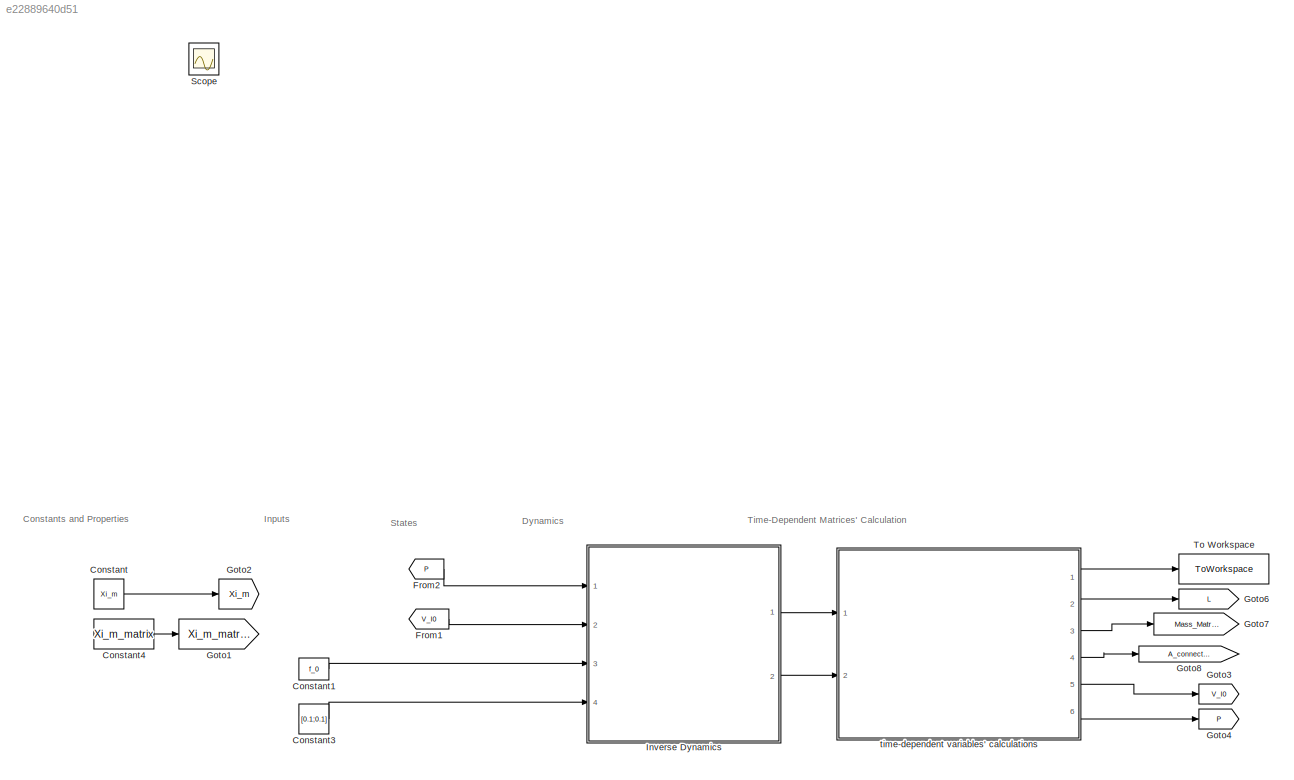
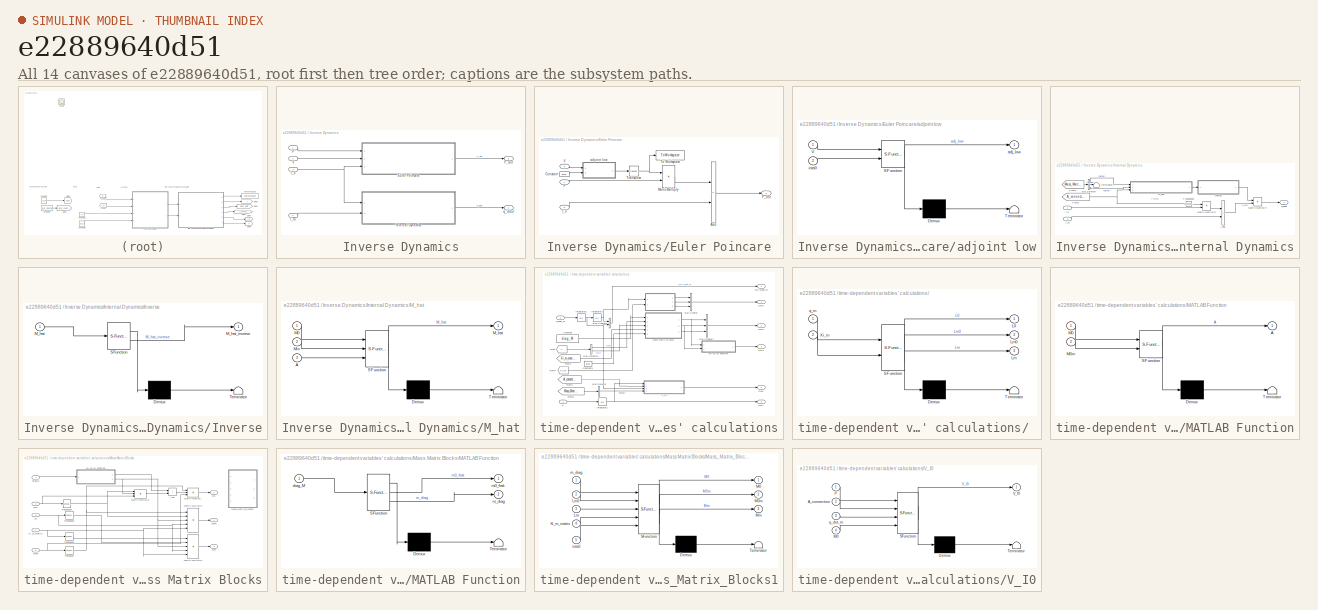
[diagram: thumbnail index - all 14 canvases of the model, root first then tree order]
MODEL slx_e22889640d51
KIND model
CONFIG AbsTol = auto
CONFIG EnableMultiTasking = off
CONFIG FixedStep = auto
CONFIG InitFcn = % ************** Initiate forces\n% f0=[0;0;0;0;0;0];\n% f0=[0;0;0;0;0;0;0];\nf_0=[0;0;0];\nf_m=[0;0];\nf_e=[0;0;0;0;0;0];\n% ************** Initiate states\nq_m=[0;0];\nq_dot_m=[0;0];\nP=[0;0;0];\nV_I0=[0;0;0];\n% ************** Load main\n%run(Main.m)
CONFIG MaxStep = auto
CONFIG MinStep = auto
CONFIG RelTol = 1e-3
CONFIG SampleTimeConstraint = Unconstrained
CONFIG SolverName = VariableStepAuto
CONFIG StartTime = 0.0
CONFIG StopTime = 10.0
BLOCK [Constant] Constant
  Value = Xi_m
  VectorParams1D = off
BLOCK [Constant] Constant1
  Value = f_0
  VectorParams1D = off
BLOCK [Constant] Constant3
  Value = [0.1;0.1]
  VectorParams1D = off
BLOCK [Constant] Constant4
  Value = Xi_m_matrix
  VectorParams1D = off
BLOCK [From] From1
  GotoTag = V_I0
  TagVisibility = global
BLOCK [From] From2
  GotoTag = P
  TagVisibility = global
BLOCK [Goto] Goto1
  GotoTag = Xi_m_matrix
  TagVisibility = global
BLOCK [Goto] Goto2
  GotoTag = Xi_m
  TagVisibility = global
BLOCK [Goto] Goto3
  GotoTag = V_I0
  TagVisibility = global
BLOCK [Goto] Goto4
  GotoTag = P
  TagVisibility = global
BLOCK [Goto] Goto6
  GotoTag = L
  TagVisibility = global
BLOCK [Goto] Goto7
  GotoTag = Mass_Matrix
  TagVisibility = global
BLOCK [Goto] Goto8
  GotoTag = A_connection
  TagVisibility = global
BLOCK [SubSystem] Inverse Dynamics
  NameLocation = right
  Ports = [4, 2]
  RequestExecContextInheritance = off
BLOCK [SubSystem] Inverse Dynamics/Euler Poincare
  Ports = [3, 1]
  RequestExecContextInheritance = off
BLOCK [Sum] Inverse Dynamics/Euler Poincare/Add
  IconShape = rectangular
  Inputs = +-
  Ports = [2, 1]
BLOCK [Constant] Inverse Dynamics/Euler Poincare/Constant
  Value = iota0
BLOCK [Product] Inverse Dynamics/Euler Poincare/Matrix Multiply
  Multiplication = Matrix(*)
  Ports = [2, 1]
BLOCK [Inport] Inverse Dynamics/Euler Poincare/P
BLOCK [Outport] Inverse Dynamics/Euler Poincare/P_dot
BLOCK [ToWorkspace] Inverse Dynamics/Euler Poincare/To Workspace
  FixptAsFi = on
  MaxDataPoints = inf
  Ports = [1]
  SampleTime = -1
  SaveFormat = Timeseries
  VariableName = simout
BLOCK [Math] Inverse Dynamics/Euler Poincare/Transpose
  Operator = transpose
  Ports = [1, 1]
BLOCK [Inport] Inverse Dynamics/Euler Poincare/V
  Port = 2
BLOCK [SubSystem] Inverse Dynamics/Euler Poincare/adjoint low
  ErrorFcn = Stateflow.Translate.translate
  PermitHierarchicalResolution = ExplicitOnly
  Ports = [2, 1]
  RequestExecContextInheritance = off
  SFBlockType = MATLAB Function
  TreatAsAtomicUnit = on
BLOCK [Demux] Inverse Dynamics/Euler Poincare/adjoint low/ Demux 
  Outputs = 1
  Ports = [1, 1]
BLOCK [S-Function] Inverse Dynamics/Euler Poincare/adjoint low/ SFunction 
  EnableBusSupport = on
  FunctionName = sf_sfun
  PortCounts = [2 2]
  Ports = [2, 2]
  SFcnIsStateOwnerBlock = off
  SFunctionDeploymentMode = off
  Tag = Stateflow S-Function 24
BLOCK [Terminator] Inverse Dynamics/Euler Poincare/adjoint low/ Terminator 
BLOCK [Inport] Inverse Dynamics/Euler Poincare/adjoint low/V
BLOCK [Outport] Inverse Dynamics/Euler Poincare/adjoint low/adj_low
BLOCK [Inport] Inverse Dynamics/Euler Poincare/adjoint low/iota0
  Port = 2
BLOCK [Inport] Inverse Dynamics/Euler Poincare/f_0
  Port = 3
BLOCK [SubSystem] Inverse Dynamics/Internal Dynamics
  Ports = [2, 1]
  RequestExecContextInheritance = off
BLOCK [Sum] Inverse Dynamics/Internal Dynamics/Add1
  IconShape = rectangular
  Inputs = -+
  Ports = [2, 1]
BLOCK [BusSelector] Inverse Dynamics/Internal Dynamics/Bus Selector
  OutputSignals = signal1,signal2,signal3
  Ports = [1, 3]
BLOCK [From] Inverse Dynamics/Internal Dynamics/From1
  GotoTag = A_connection
  TagVisibility = global
BLOCK [From] Inverse Dynamics/Internal Dynamics/From7
  GotoTag = Mass_Matrix
  TagVisibility = global
BLOCK [SubSystem] Inverse Dynamics/Internal Dynamics/Inverse
  ErrorFcn = Stateflow.Translate.translate
  PermitHierarchicalResolution = ExplicitOnly
  Ports = [1, 1]
  RequestExecContextInheritance = off
  SFBlockType = MATLAB Function
  TreatAsAtomicUnit = on
BLOCK [Demux] Inverse Dynamics/Internal Dynamics/Inverse/ Demux 
  Outputs = 1
  Ports = [1, 1]
BLOCK [S-Function] Inverse Dynamics/Internal Dynamics/Inverse/ SFunction 
  EnableBusSupport = on
  FunctionName = sf_sfun
  PortCounts = [1 2]
  Ports = [1, 2]
  SFcnIsStateOwnerBlock = off
  SFunctionDeploymentMode = off
  Tag = Stateflow S-Function 29
BLOCK [Terminator] Inverse Dynamics/Internal Dynamics/Inverse/ Terminator 
BLOCK [Inport] Inverse Dynamics/Internal Dynamics/Inverse/M_hat
BLOCK [Outport] Inverse Dynamics/Internal Dynamics/Inverse/M_hat_inverse
BLOCK [SubSystem] Inverse Dynamics/Internal Dynamics/M_hat
  ErrorFcn = Stateflow.Translate.translate
  PermitHierarchicalResolution = ExplicitOnly
  Ports = [3, 1]
  RequestExecContextInheritance = off
  SFBlockType = MATLAB Function
  TreatAsAtomicUnit = on
BLOCK [Demux] Inverse Dynamics/Internal Dynamics/M_hat/ Demux 
  Outputs = 1
  Ports = [1, 1]
BLOCK [S-Function] Inverse Dynamics/Internal Dynamics/M_hat/ SFunction 
  EnableBusSupport = on
  FunctionName = sf_sfun
  PortCounts = [3 2]
  Ports = [3, 2]
  SFcnIsStateOwnerBlock = off
  SFunctionDeploymentMode = off
  Tag = Stateflow S-Function 32
BLOCK [Terminator] Inverse Dynamics/Internal Dynamics/M_hat/ Terminator 
BLOCK [Inport] Inverse Dynamics/Internal Dynamics/M_hat/A
  Port = 3
BLOCK [Inport] Inverse Dynamics/Internal Dynamics/M_hat/M0
BLOCK [Outport] Inverse Dynamics/Internal Dynamics/M_hat/M_hat
BLOCK [Inport] Inverse Dynamics/Internal Dynamics/M_hat/Mm
  Port = 2
BLOCK [Product] Inverse Dynamics/Internal Dynamics/Matrix Multiply2
  Multiplication = Matrix(*)
  Ports = [2, 1]
BLOCK [Product] Inverse Dynamics/Internal Dynamics/Matrix Multiply4
  Multiplication = Matrix(*)
  Ports = [2, 1]
BLOCK [Terminator] Inverse Dynamics/Internal Dynamics/Terminator1
BLOCK [Math] Inverse Dynamics/Internal Dynamics/Transpose2
  Operator = transpose
  Ports = [1, 1]
BLOCK [Inport] Inverse Dynamics/Internal Dynamics/f_0
BLOCK [Inport] Inverse Dynamics/Internal Dynamics/f_m
  Port = 2
BLOCK [Outport] Inverse Dynamics/Internal Dynamics/q_ddot
BLOCK [Inport] Inverse Dynamics/P
BLOCK [Outport] Inverse Dynamics/P_dot
BLOCK [Inport] Inverse Dynamics/V
  Port = 2
BLOCK [Inport] Inverse Dynamics/f_0
  Port = 3
BLOCK [Inport] Inverse Dynamics/f_m
  Port = 4
BLOCK [Outport] Inverse Dynamics/q_ddot
  Port = 2
BLOCK [Scope] Scope
  Floating = off
  IOType = viewer
  NumInputPorts = 1
  Ports = []
  ScopeSpecificationString = Simulink.scopes.TimeScopeBlockCfg('CurrentConfiguration', extmgr.ConfigurationSet(extmgr.Configuration('Core','General UI',true),extmgr.Configuration('Core','Source UI',true),extmgr.Configuration('Sources','WiredSimulink',true),extmgr.Configuration('Visuals','Time Domain',true,'SerializedDisplays',{struct('MinYLimReal','-10','MaxYLimReal','10','YLabelReal','','MinYLimMag','0','MaxYLimMag','10','Le...<+777ch>
BLOCK [ToWorkspace] To Workspace
  FixptAsFi = on
  MaxDataPoints = inf
  Ports = [1]
  SampleTime = -1
  SaveFormat = Timeseries
  VariableName = simout1
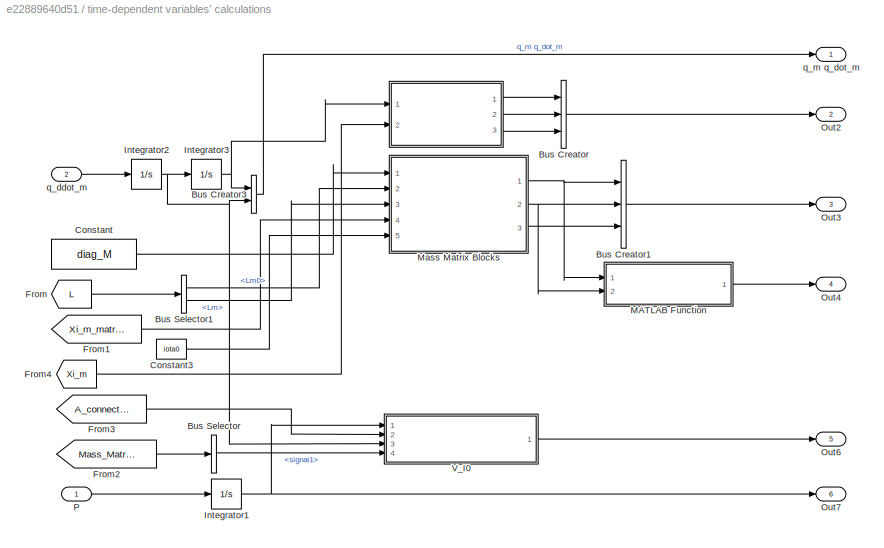
BLOCK [SubSystem] time-dependent variables' calculations
  Ports = [2, 6]
  RequestExecContextInheritance = off
BLOCK [SubSystem] time-dependent variables' calculations/ 
  ErrorFcn = Stateflow.Translate.translate
  PermitHierarchicalResolution = ExplicitOnly
  Ports = [2, 3]
  RequestExecContextInheritance = off
  SFBlockType = MATLAB Function
  TreatAsAtomicUnit = on
BLOCK [Demux] time-dependent variables' calculations/ / Demux 
  Outputs = 1
  Ports = [1, 1]
BLOCK [S-Function] time-dependent variables' calculations/ / SFunction 
  EnableBusSupport = on
  FunctionName = sf_sfun
  PortCounts = [2 4]
  Ports = [2, 4]
  SFcnIsStateOwnerBlock = off
  SFunctionDeploymentMode = off
  Tag = Stateflow S-Function 34
BLOCK [Terminator] time-dependent variables' calculations/ / Terminator 
BLOCK [Outport] time-dependent variables' calculations/ /L0
BLOCK [Outport] time-dependent variables' calculations/ /Lm
  Port = 3
BLOCK [Outport] time-dependent variables' calculations/ /Lm0
  Port = 2
BLOCK [Inport] time-dependent variables' calculations/ /Xi_m
  Port = 2
BLOCK [Inport] time-dependent variables' calculations/ /q_m
BLOCK [BusCreator] time-dependent variables' calculations/Bus Creator
  DisplayOption = bar
  InheritFromInputs = on
  Inputs = 3
  Ports = [3, 1]
BLOCK [BusCreator] time-dependent variables' calculations/Bus Creator1
  DisplayOption = bar
  InheritFromInputs = on
  Inputs = 3
  Ports = [3, 1]
BLOCK [BusCreator] time-dependent variables' calculations/Bus Creator3
  DisplayOption = bar
  InheritFromInputs = on
  Inputs = 2
  Ports = [2, 1]
BLOCK [BusSelector] time-dependent variables' calculations/Bus Selector
  OutputSignals = signal1
  Ports = [1, 1]
BLOCK [BusSelector] time-dependent variables' calculations/Bus Selector1
  OutputSignals = Lm0,Lm
  Ports = [1, 2]
BLOCK [Constant] time-dependent variables' calculations/Constant
  Value = diag_M
  VectorParams1D = off
BLOCK [Constant] time-dependent variables' calculations/Constant3
  Value = iota0
  VectorParams1D = off
BLOCK [From] time-dependent variables' calculations/From
  GotoTag = L
  TagVisibility = global
BLOCK [From] time-dependent variables' calculations/From1
  GotoTag = Xi_m_matrix
  TagVisibility = global
BLOCK [From] time-dependent variables' calculations/From2
  GotoTag = Mass_Matrix
  TagVisibility = global
BLOCK [From] time-dependent variables' calculations/From3
  GotoTag = A_connection
  TagVisibility = global
BLOCK [From] time-dependent variables' calculations/From4
  GotoTag = Xi_m
  TagVisibility = global
BLOCK [Integrator] time-dependent variables' calculations/Integrator1
  Ports = [1, 1]
BLOCK [Integrator] time-dependent variables' calculations/Integrator2
  Ports = [1, 1]
BLOCK [Integrator] time-dependent variables' calculations/Integrator3
  Ports = [1, 1]
BLOCK [SubSystem] time-dependent variables' calculations/MATLAB Function
  ErrorFcn = Stateflow.Translate.translate
  PermitHierarchicalResolution = ExplicitOnly
  Ports = [2, 1]
  RequestExecContextInheritance = off
  SFBlockType = MATLAB Function
  TreatAsAtomicUnit = on
BLOCK [Demux] time-dependent variables' calculations/MATLAB Function/ Demux 
  Outputs = 1
  Ports = [1, 1]
BLOCK [S-Function] time-dependent variables' calculations/MATLAB Function/ SFunction 
  EnableBusSupport = on
  FunctionName = sf_sfun
  PortCounts = [2 2]
  Ports = [2, 2]
  SFcnIsStateOwnerBlock = off
  SFunctionDeploymentMode = off
  Tag = Stateflow S-Function 35
BLOCK [Terminator] time-dependent variables' calculations/MATLAB Function/ Terminator 
BLOCK [Outport] time-dependent variables' calculations/MATLAB Function/A
BLOCK [Inport] time-dependent variables' calculations/MATLAB Function/M0
BLOCK [Inport] time-dependent variables' calculations/MATLAB Function/M0m
  Port = 2
BLOCK [SubSystem] time-dependent variables' calculations/Mass Matrix Blocks
  Ports = [5, 3]
  RequestExecContextInheritance = off
BLOCK [Sum] time-dependent variables' calculations/Mass Matrix Blocks/Add
  IconShape = rectangular
  Ports = [2, 1]
BLOCK [Inport] time-dependent variables' calculations/Mass Matrix Blocks/Lm
  Port = 3
BLOCK [Inport] time-dependent variables' calculations/Mass Matrix Blocks/Lm0
  Port = 2
BLOCK [Outport] time-dependent variables' calculations/Mass Matrix Blocks/M0
BLOCK [Outport] time-dependent variables' calculations/Mass Matrix Blocks/M0m
  Port = 2
BLOCK [SubSystem] time-dependent variables' calculations/Mass Matrix Blocks/MATLAB Function
  ErrorFcn = Stateflow.Translate.translate
  PermitHierarchicalResolution = ExplicitOnly
  Ports = [1, 2]
  RequestExecContextInheritance = off
  SFBlockType = MATLAB Function
  TreatAsAtomicUnit = on
BLOCK [Demux] time-dependent variables' calculations/Mass Matrix Blocks/MATLAB Function/ Demux 
  Outputs = 1
  Ports = [1, 1]
BLOCK [S-Function] time-dependent variables' calculations/Mass Matrix Blocks/MATLAB Function/ SFunction 
  EnableBusSupport = on
  FunctionName = sf_sfun
  PortCounts = [1 3]
  Ports = [1, 3]
  SFcnIsStateOwnerBlock = off
  SFunctionDeploymentMode = off
  Tag = Stateflow S-Function 40
BLOCK [Terminator] time-dependent variables' calculations/Mass Matrix Blocks/MATLAB Function/ Terminator 
BLOCK [Inport] time-dependent variables' calculations/Mass Matrix Blocks/MATLAB Function/diag_M
BLOCK [Outport] time-dependent variables' calculations/Mass Matrix Blocks/MATLAB Function/m0_frak
BLOCK [Outport] time-dependent variables' calculations/Mass Matrix Blocks/MATLAB Function/m_diag
  Port = 2
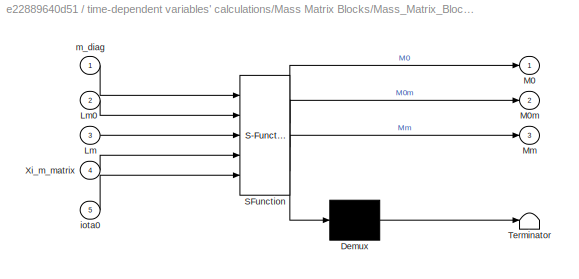
BLOCK [SubSystem] time-dependent variables' calculations/Mass Matrix Blocks/Mass_Matrix_Blocks1
  Commented = on
  ErrorFcn = Stateflow.Translate.translate
  PermitHierarchicalResolution = ExplicitOnly
  Ports = [5, 3]
  RequestExecContextInheritance = off
  SFBlockType = MATLAB Function
  TreatAsAtomicUnit = on
BLOCK [Demux] time-dependent variables' calculations/Mass Matrix Blocks/Mass_Matrix_Blocks1/ Demux 
  Outputs = 1
  Ports = [1, 1]
BLOCK [S-Function] time-dependent variables' calculations/Mass Matrix Blocks/Mass_Matrix_Blocks1/ SFunction 
  EnableBusSupport = on
  FunctionName = sf_sfun
  PortCounts = [5 4]
  Ports = [5, 4]
  SFcnIsStateOwnerBlock = off
  SFunctionDeploymentMode = off
  Tag = Stateflow S-Function 41
BLOCK [Terminator] time-dependent variables' calculations/Mass Matrix Blocks/Mass_Matrix_Blocks1/ Terminator 
BLOCK [Inport] time-dependent variables' calculations/Mass Matrix Blocks/Mass_Matrix_Blocks1/Lm
  Port = 3
BLOCK [Inport] time-dependent variables' calculations/Mass Matrix Blocks/Mass_Matrix_Blocks1/Lm0
  Port = 2
BLOCK [Outport] time-dependent variables' calculations/Mass Matrix Blocks/Mass_Matrix_Blocks1/M0
BLOCK [Outport] time-dependent variables' calculations/Mass Matrix Blocks/Mass_Matrix_Blocks1/M0m
  Port = 2
BLOCK [Outport] time-dependent variables' calculations/Mass Matrix Blocks/Mass_Matrix_Blocks1/Mm
  Port = 3
BLOCK [Inport] time-dependent variables' calculations/Mass Matrix Blocks/Mass_Matrix_Blocks1/Xi_m_matrix
  Port = 4
BLOCK [Inport] time-dependent variables' calculations/Mass Matrix Blocks/Mass_Matrix_Blocks1/iota0
  Port = 5
BLOCK [Inport] time-dependent variables' calculations/Mass Matrix Blocks/Mass_Matrix_Blocks1/m_diag
BLOCK [Product] time-dependent variables' calculations/Mass Matrix Blocks/Matrix Multiply
  Inputs = 3
  Multiplication = Matrix(*)
  Ports = [3, 1]
BLOCK [Product] time-dependent variables' calculations/Mass Matrix Blocks/Matrix Multiply1
  Inputs = 5
  Multiplication = Matrix(*)
  Ports = [5, 1]
BLOCK [Product] time-dependent variables' calculations/Mass Matrix Blocks/Matrix Multiply2
  Inputs = 5
  Multiplication = Matrix(*)
  Ports = [5, 1]
BLOCK [Product] time-dependent variables' calculations/Mass Matrix Blocks/Matrix Multiply3
  Inputs = 3
  Multiplication = Matrix(*)
  Ports = [3, 1]
BLOCK [Outport] time-dependent variables' calculations/Mass Matrix Blocks/Mm
  Port = 3
BLOCK [Math] time-dependent variables' calculations/Mass Matrix Blocks/Transpose
  Operator = transpose
  Ports = [1, 1]
BLOCK [Math] time-dependent variables' calculations/Mass Matrix Blocks/Transpose1
  Operator = transpose
  Ports = [1, 1]
BLOCK [Math] time-dependent variables' calculations/Mass Matrix Blocks/Transpose2
  Operator = transpose
  Ports = [1, 1]
BLOCK [Math] time-dependent variables' calculations/Mass Matrix Blocks/Transpose3
  Operator = transpose
  Ports = [1, 1]
BLOCK [Inport] time-dependent variables' calculations/Mass Matrix Blocks/Xi_m_matrix
  Port = 4
BLOCK [Inport] time-dependent variables' calculations/Mass Matrix Blocks/diag_M
BLOCK [Inport] time-dependent variables' calculations/Mass Matrix Blocks/iota0
  Port = 5
BLOCK [Outport] time-dependent variables' calculations/Out2
  Port = 2
BLOCK [Outport] time-dependent variables' calculations/Out3
  Port = 3
BLOCK [Outport] time-dependent variables' calculations/Out4
  Port = 4
BLOCK [Outport] time-dependent variables' calculations/Out6
  Port = 5
BLOCK [Outport] time-dependent variables' calculations/Out7
  Port = 6
BLOCK [Inport] time-dependent variables' calculations/P
BLOCK [SubSystem] time-dependent variables' calculations/V_I0
  ErrorFcn = Stateflow.Translate.translate
  PermitHierarchicalResolution = ExplicitOnly
  Ports = [4, 1]
  RequestExecContextInheritance = off
  SFBlockType = MATLAB Function
  TreatAsAtomicUnit = on
BLOCK [Demux] time-dependent variables' calculations/V_I0/ Demux 
  Outputs = 1
  Ports = [1, 1]
BLOCK [S-Function] time-dependent variables' calculations/V_I0/ SFunction 
  EnableBusSupport = on
  FunctionName = sf_sfun
  PortCounts = [4 2]
  Ports = [4, 2]
  SFcnIsStateOwnerBlock = off
  SFunctionDeploymentMode = off
  Tag = Stateflow S-Function 53
BLOCK [Terminator] time-dependent variables' calculations/V_I0/ Terminator 
BLOCK [Inport] time-dependent variables' calculations/V_I0/A_connection
  Port = 2
BLOCK [Inport] time-dependent variables' calculations/V_I0/M0
  Port = 4
BLOCK [Inport] time-dependent variables' calculations/V_I0/P
BLOCK [Outport] time-dependent variables' calculations/V_I0/V_I0
BLOCK [Inport] time-dependent variables' calculations/V_I0/q_dot_m
  Port = 3
BLOCK [Inport] time-dependent variables' calculations/q_ddot_m
  Port = 2
BLOCK [Outport] time-dependent variables' calculations/q_m q_dot_m
ANNOTATION (root): Constants and Properties
ANNOTATION (root): Dynamics
ANNOTATION (root): Inputs
ANNOTATION (root): States
ANNOTATION (root): Time-Dependent Matrices' Calculation
ANNOTATION Inverse Dynamics/Internal Dynamics: Forces
LINE Constant1:1 -> Inverse Dynamics:3
LINE Constant3:1 -> Inverse Dynamics:4
LINE Constant4:1 -> Goto1:1
LINE Constant:1 -> Goto2:1
LINE From1:1 -> Inverse Dynamics:2
LINE From2:1 -> Inverse Dynamics:1
LINE Inverse Dynamics/Euler Poincare/Add:1 -> Inverse Dynamics/Euler Poincare/P_dot:1
LINE Inverse Dynamics/Euler Poincare/Constant:1 -> Inverse Dynamics/Euler Poincare/adjoint low:2
LINE Inverse Dynamics/Euler Poincare/Matrix Multiply:1 -> Inverse Dynamics/Euler Poincare/Add:1
LINE Inverse Dynamics/Euler Poincare/P:1 -> Inverse Dynamics/Euler Poincare/Matrix Multiply:2
NET Inverse Dynamics/Euler Poincare/Transpose:1 -> Inverse Dynamics/Euler Poincare/Matrix Multiply:1, Inverse Dynamics/Euler Poincare/To Workspace:1
LINE Inverse Dynamics/Euler Poincare/V:1 -> Inverse Dynamics/Euler Poincare/adjoint low:1
LINE Inverse Dynamics/Euler Poincare/adjoint low:1 -> Inverse Dynamics/Euler Poincare/Transpose:1
LINE Inverse Dynamics/Euler Poincare/f_0:1 -> Inverse Dynamics/Euler Poincare/Add:2
LINE Inverse Dynamics/Euler Poincare:1 -> Inverse Dynamics/P_dot:1
LINE Inverse Dynamics/Internal Dynamics/Add1:1 -> Inverse Dynamics/Internal Dynamics/Matrix Multiply4:2
LINE Inverse Dynamics/Internal Dynamics/Bus Selector:1 -> Inverse Dynamics/Internal Dynamics/M_hat:1
LINE Inverse Dynamics/Internal Dynamics/Bus Selector:2 -> Inverse Dynamics/Internal Dynamics/Terminator1:1
LINE Inverse Dynamics/Internal Dynamics/Bus Selector:3 -> Inverse Dynamics/Internal Dynamics/M_hat:2
NET Inverse Dynamics/Internal Dynamics/From1:1 -> Inverse Dynamics/Internal Dynamics/M_hat:3, Inverse Dynamics/Internal Dynamics/Transpose2:1
LINE Inverse Dynamics/Internal Dynamics/From7:1 -> Inverse Dynamics/Internal Dynamics/Bus Selector:1
LINE Inverse Dynamics/Internal Dynamics/Inverse:1 -> Inverse Dynamics/Internal Dynamics/Matrix Multiply4:1
LINE Inverse Dynamics/Internal Dynamics/M_hat:1 -> Inverse Dynamics/Internal Dynamics/Inverse:1
LINE Inverse Dynamics/Internal Dynamics/Matrix Multiply2:1 -> Inverse Dynamics/Internal Dynamics/Add1:1
LINE Inverse Dynamics/Internal Dynamics/Matrix Multiply4:1 -> Inverse Dynamics/Internal Dynamics/q_ddot:1
LINE Inverse Dynamics/Internal Dynamics/Transpose2:1 -> Inverse Dynamics/Internal Dynamics/Matrix Multiply2:1
LINE Inverse Dynamics/Internal Dynamics/f_0:1 -> Inverse Dynamics/Internal Dynamics/Matrix Multiply2:2
LINE Inverse Dynamics/Internal Dynamics/f_m:1 -> Inverse Dynamics/Internal Dynamics/Add1:2
LINE Inverse Dynamics/Internal Dynamics:1 -> Inverse Dynamics/q_ddot:1
LINE Inverse Dynamics/P:1 -> Inverse Dynamics/Euler Poincare:1
LINE Inverse Dynamics/V:1 -> Inverse Dynamics/Euler Poincare:2
NET Inverse Dynamics/f_0:1 -> Inverse Dynamics/Euler Poincare:3, Inverse Dynamics/Internal Dynamics:1
LINE Inverse Dynamics/f_m:1 -> Inverse Dynamics/Internal Dynamics:2
LINE Inverse Dynamics:1 -> time-dependent variables' calculations:1
LINE Inverse Dynamics:2 -> time-dependent variables' calculations:2
LINE time-dependent variables' calculations/ :1 -> time-dependent variables' calculations/Bus Creator:1
LINE time-dependent variables' calculations/ :2 -> time-dependent variables' calculations/Bus Creator:2
LINE time-dependent variables' calculations/ :3 -> time-dependent variables' calculations/Bus Creator:3
LINE time-dependent variables' calculations/Bus Creator1:1 -> time-dependent variables' calculations/Out3:1
LINE time-dependent variables' calculations/Bus Creator3:1 -> time-dependent variables' calculations/q_m q_dot_m:1
LINE time-dependent variables' calculations/Bus Creator:1 -> time-dependent variables' calculations/Out2:1
LINE time-dependent variables' calculations/Bus Selector1:1 -> time-dependent variables' calculations/Mass Matrix Blocks:2
LINE time-dependent variables' calculations/Bus Selector1:2 -> time-dependent variables' calculations/Mass Matrix Blocks:3
LINE time-dependent variables' calculations/Bus Selector:1 -> time-dependent variables' calculations/V_I0:4
LINE time-dependent variables' calculations/Constant3:1 -> time-dependent variables' calculations/Mass Matrix Blocks:5
LINE time-dependent variables' calculations/Constant:1 -> time-dependent variables' calculations/Mass Matrix Blocks:1
LINE time-dependent variables' calculations/From1:1 -> time-dependent variables' calculations/Mass Matrix Blocks:4
LINE time-dependent variables' calculations/From2:1 -> time-dependent variables' calculations/Bus Selector:1
LINE time-dependent variables' calculations/From3:1 -> time-dependent variables' calculations/V_I0:2
LINE time-dependent variables' calculations/From4:1 -> time-dependent variables' calculations/ :2
LINE time-dependent variables' calculations/From:1 -> time-dependent variables' calculations/Bus Selector1:1
NET time-dependent variables' calculations/Integrator1:1 -> time-dependent variables' calculations/Out7:1, time-dependent variables' calculations/V_I0:1
NET time-dependent variables' calculations/Integrator2:1 -> time-dependent variables' calculations/Bus Creator3:2, time-dependent variables' calculations/Integrator3:1, time-dependent variables' calculations/V_I0:3
NET time-dependent variables' calculations/Integrator3:1 -> time-dependent variables' calculations/ :1, time-dependent variables' calculations/Bus Creator3:1
LINE time-dependent variables' calculations/MATLAB Function:1 -> time-dependent variables' calculations/Out4:1
LINE time-dependent variables' calculations/Mass Matrix Blocks/Add:1 -> time-dependent variables' calculations/Mass Matrix Blocks/Matrix Multiply:2
NET time-dependent variables' calculations/Mass Matrix Blocks/Lm0:1 -> time-dependent variables' calculations/Mass Matrix Blocks/Matrix Multiply3:3, time-dependent variables' calculations/Mass Matrix Blocks/Transpose3:1
NET time-dependent variables' calculations/Mass Matrix Blocks/Lm:1 -> time-dependent variables' calculations/Mass Matrix Blocks/Matrix Multiply1:4, time-dependent variables' calculations/Mass Matrix Blocks/Matrix Multiply2:4, time-dependent variables' calculations/Mass Matrix Blocks/Transpose2:1
LINE time-dependent variables' calculations/Mass Matrix Blocks/MATLAB Function:1 -> time-dependent variables' calculations/Mass Matrix Blocks/Add:1
NET time-dependent variables' calculations/Mass Matrix Blocks/MATLAB Function:2 -> time-dependent variables' calculations/Mass Matrix Blocks/Matrix Multiply1:3, time-dependent variables' calculations/Mass Matrix Blocks/Matrix Multiply2:3, time-dependent variables' calculations/Mass Matrix Blocks/Matrix Multiply3:2
LINE time-dependent variables' calculations/Mass Matrix Blocks/Matrix Multiply1:1 -> time-dependent variables' calculations/Mass Matrix Blocks/M0m:1
LINE time-dependent variables' calculations/Mass Matrix Blocks/Matrix Multiply2:1 -> time-dependent variables' calculations/Mass Matrix Blocks/Mm:1
LINE time-dependent variables' calculations/Mass Matrix Blocks/Matrix Multiply3:1 -> time-dependent variables' calculations/Mass Matrix Blocks/Add:2
LINE time-dependent variables' calculations/Mass Matrix Blocks/Matrix Multiply:1 -> time-dependent variables' calculations/Mass Matrix Blocks/M0:1
LINE time-dependent variables' calculations/Mass Matrix Blocks/Transpose1:1 -> time-dependent variables' calculations/Mass Matrix Blocks/Matrix Multiply2:1
LINE time-dependent variables' calculations/Mass Matrix Blocks/Transpose2:1 -> time-dependent variables' calculations/Mass Matrix Blocks/Matrix Multiply2:2
NET time-dependent variables' calculations/Mass Matrix Blocks/Transpose3:1 -> time-dependent variables' calculations/Mass Matrix Blocks/Matrix Multiply1:2, time-dependent variables' calculations/Mass Matrix Blocks/Matrix Multiply3:1
NET time-dependent variables' calculations/Mass Matrix Blocks/Transpose:1 -> time-dependent variables' calculations/Mass Matrix Blocks/Matrix Multiply1:1, time-dependent variables' calculations/Mass Matrix Blocks/Matrix Multiply:1
NET time-dependent variables' calculations/Mass Matrix Blocks/Xi_m_matrix:1 -> time-dependent variables' calculations/Mass Matrix Blocks/Matrix Multiply1:5, time-dependent variables' calculations/Mass Matrix Blocks/Matrix Multiply2:5, time-dependent variables' calculations/Mass Matrix Blocks/Transpose1:1
LINE time-dependent variables' calculations/Mass Matrix Blocks/diag_M:1 -> time-dependent variables' calculations/Mass Matrix Blocks/MATLAB Function:1
NET time-dependent variables' calculations/Mass Matrix Blocks/iota0:1 -> time-dependent variables' calculations/Mass Matrix Blocks/Matrix Multiply:3, time-dependent variables' calculations/Mass Matrix Blocks/Transpose:1
NET time-dependent variables' calculations/Mass Matrix Blocks:1 -> time-dependent variables' calculations/Bus Creator1:1, time-dependent variables' calculations/MATLAB Function:1
NET time-dependent variables' calculations/Mass Matrix Blocks:2 -> time-dependent variables' calculations/Bus Creator1:2, time-dependent variables' calculations/MATLAB Function:2
LINE time-dependent variables' calculations/Mass Matrix Blocks:3 -> time-dependent variables' calculations/Bus Creator1:3
LINE time-dependent variables' calculations/P:1 -> time-dependent variables' calculations/Integrator1:1
LINE time-dependent variables' calculations/V_I0:1 -> time-dependent variables' calculations/Out6:1
LINE time-dependent variables' calculations/q_ddot_m:1 -> time-dependent variables' calculations/Integrator2:1
LINE time-dependent variables' calculations:1 -> To Workspace:1
LINE time-dependent variables' calculations:2 -> Goto6:1
LINE time-dependent variables' calculations:3 -> Goto7:1
LINE time-dependent variables' calculations:4 -> Goto8:1
LINE time-dependent variables' calculations:5 -> Goto3:1
LINE time-dependent variables' calculations:6 -> Goto4:1
note: NET lines group one-source signal fan-out (src -> all destinations, sorted); 1:1 wires keep LINE
CHART Inverse Dynamics/Euler Poincare/adjoint low states=1 transitions=1
  STATE_LABEL 'eML_blk_kernel()'
  STATE_LABEL 'SCRIPT:\nfunction adj_low = adj_low(V, iota0)\n% calculates the adjoint corresponding to the Lie bracket of vector V and ()\nadj_low = adjoint_low(V,iota0);\n'
CHART Inverse Dynamics/Internal Dynamics/Inverse states=1 transitions=1
  STATE_LABEL 'eML_blk_kernel()'
  STATE_LABEL 'SCRIPT:\nfunction M_hat_inverse = Inverse(M_hat)\n\nM_hat_inverse=inv(M_hat);\n'
CHART Inverse Dynamics/Internal Dynamics/M_hat states=1 transitions=1
  STATE_LABEL 'eML_blk_kernel()'
  STATE_LABEL 'SCRIPT:\nfunction M_hat =M_hat(M0,Mm,A)\n% Compute the Mass Matrix of the multibody system.\n%   Input:\n%   M0      Spacecraft mass matrix \n%   M0m     Coupling\n%   Mm      Manipulator mass matrix\n\n% Calculate M_hat\nM_hat=Mm-transpose(A)*M0*A;\n\n\nend'
CHART time-dependent variables' calculations/  states=1 transitions=1
  STATE_LABEL 'eML_blk_kernel()'
  STATE_LABEL 'SCRIPT:\nfunction [L0,Lm0,Lm] =L_calculator(q_m,Xi_m)\n% Calculates the time-dependent L matrix\nn=length(q_m);\nL=zeros(6*(n+1),6*(n+1));\n% Compute M_frak for ith body\n% Calculate L matrix\nfor i=1:n\n    for j=1:n\n        if i>j\n            Ad_temp=eye(6);\n            for k=i:j\n                Ad_temp=Ad_temp*Adjoint(g_Matrix(-Xi_m(:,k),q_m(k)));\n            end\n            L(6*(i-1)+1:6*(i-1)+6,6*(j-...<+273ch>'
CHART time-dependent variables' calculations/MATLAB Function states=1 transitions=1
  STATE_LABEL 'eML_blk_kernel()'
  STATE_LABEL 'SCRIPT:\nfunction A=A_connection(M0,M0m)\n% Compute the connection A from mass properties\n\nA=M0\\M0m;\n'
CHART time-dependent variables' calculations/Mass Matrix Blocks/MATLAB Function states=1 transitions=1
  STATE_LABEL 'eML_blk_kernel()'
  STATE_LABEL 'SCRIPT:\nfunction [m0_frak,m_diag]=m_frak_decomp(diag_M)\n% Compute the Mass Matrix of the multibody system.\n%   Output:\n%   M0      Spacecraft mass matrix \n%   M0m\n%   Mm      Manipulator mass matrix\n\n%n=length(q_m);\n\nm0_frak=diag_M(1:6,1:6);\nm_diag=diag_M(7:end,7:end);'
CHART time-dependent variables' calculations/Mass Matrix Blocks/Mass_Matrix_Blocks1 states=1 transitions=1
  STATE_LABEL 'eML_blk_kernel()'
  STATE_LABEL 'SCRIPT:\nfunction [M0,M0m,Mm]=Mass_Matrix(m_diag,Lm0,Lm,Xi_m_matrix,iota0)\n% Compute the Mass Matrix of the multibody system.\n%   Output:\n%   M0      Spacecraft mass matrix \n%   M0m\n%   Mm      Manipulator mass matrix\n\n%n=length(q_m);\n\nm0_frak=m_diag(1:6,1:6);\nm_diag=m_diag(7:end,7:end);\n\n%Initiate\nM0=[I0,zeros(3,3);zeros(3,3),m0*eye(3)];\nM0m=zeros(6,6*n);\nMm=zeros(6*n,6*n);\n\n%calculate transposes\n...<+339ch>'
CHART time-dependent variables' calculations/V_I0 states=1 transitions=1
  STATE_LABEL 'eML_blk_kernel()'
  STATE_LABEL 'SCRIPT:\nfunction V_I0=V_I0(P,A_connection,q_dot_m,M0)\n% Find the spaccecraft velocity V_I0\nM0_inv=inv(M0);\n% temp=P-transpose(A_connection)*q_dot_m;\nV_I0=M0_inv\\P-A_connection*q_dot_m;\n'
CHART  states=0 transitions=0
CHART  states=0 transitions=0
CHART  states=0 transitions=0
CHART  states=0 transitions=0
CHART  states=0 transitions=0
CHART  states=0 transitions=0
CHART  states=0 transitions=0
CHART  states=0 transitions=0
